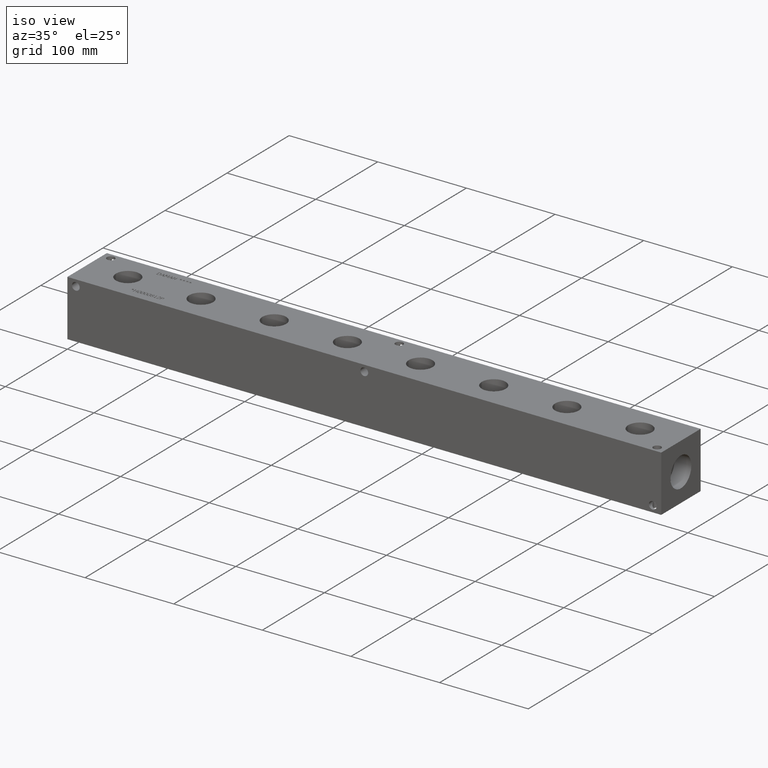
[diagram: clean part render]
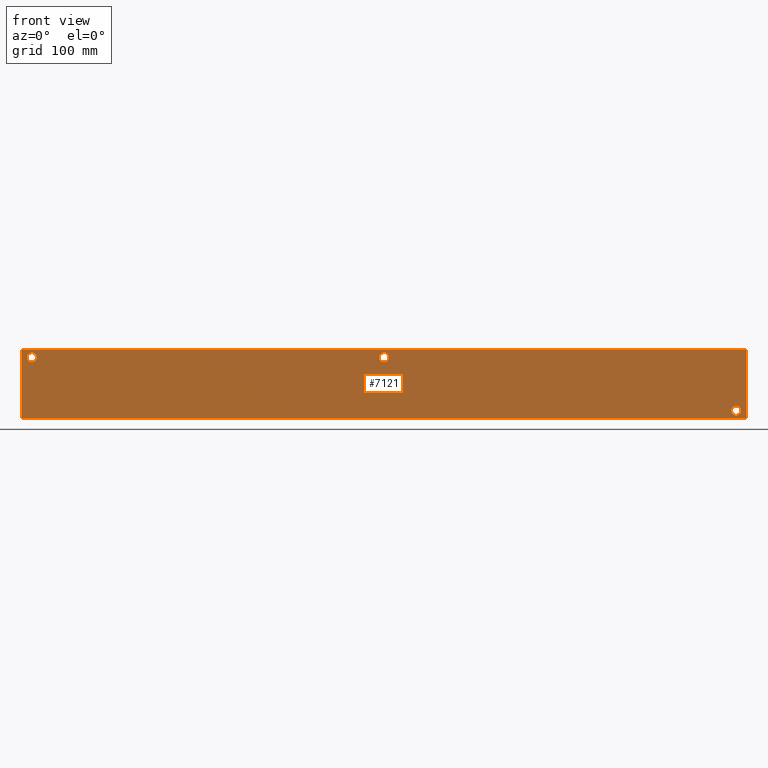
[diagram: tour spotlight — one face highlighted and labeled with its STEP entity id]
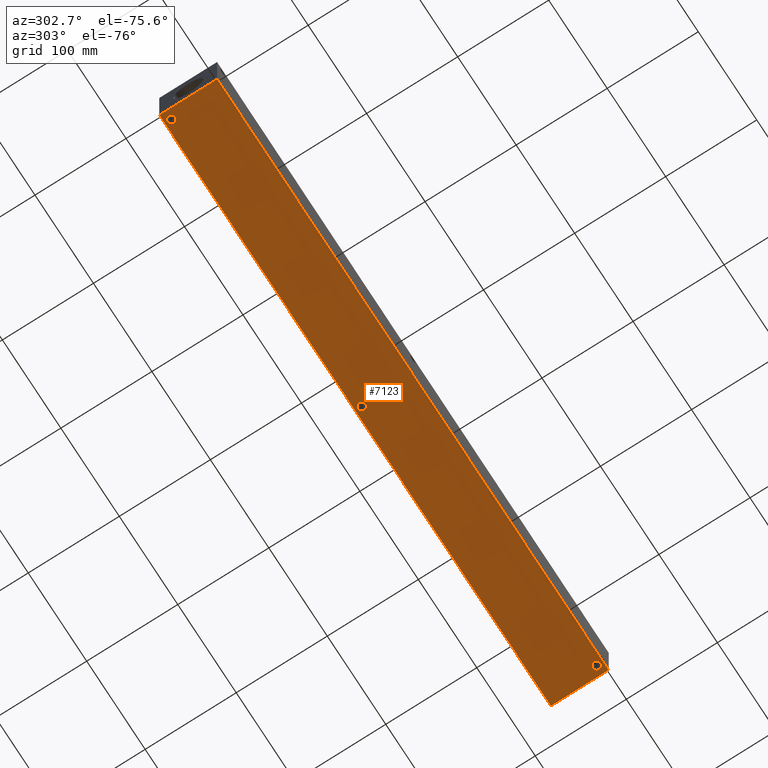
[diagram: tour spotlight — one face highlighted and labeled with its STEP entity id]
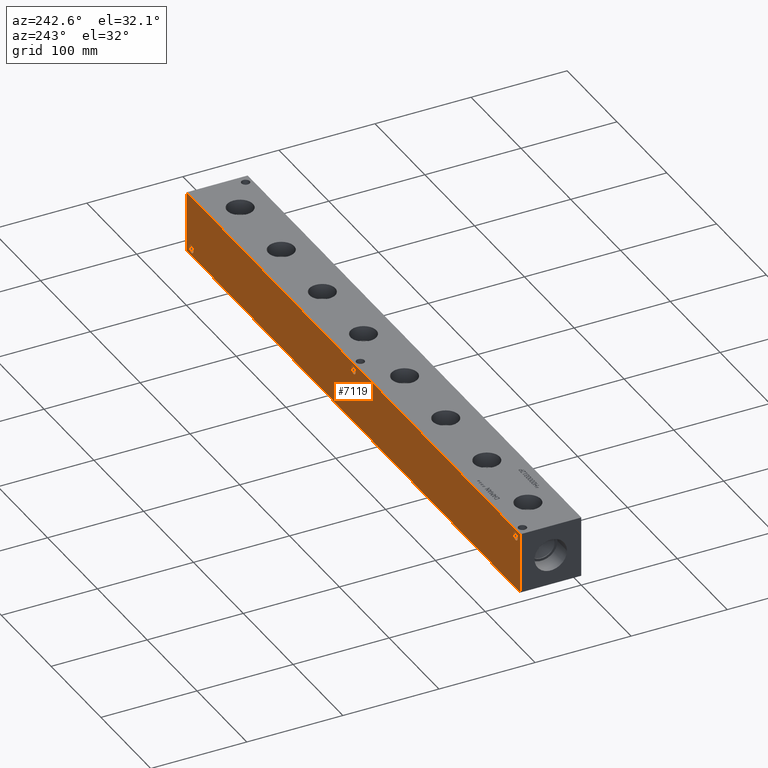
[diagram: tour spotlight — one face highlighted and labeled with its STEP entity id]
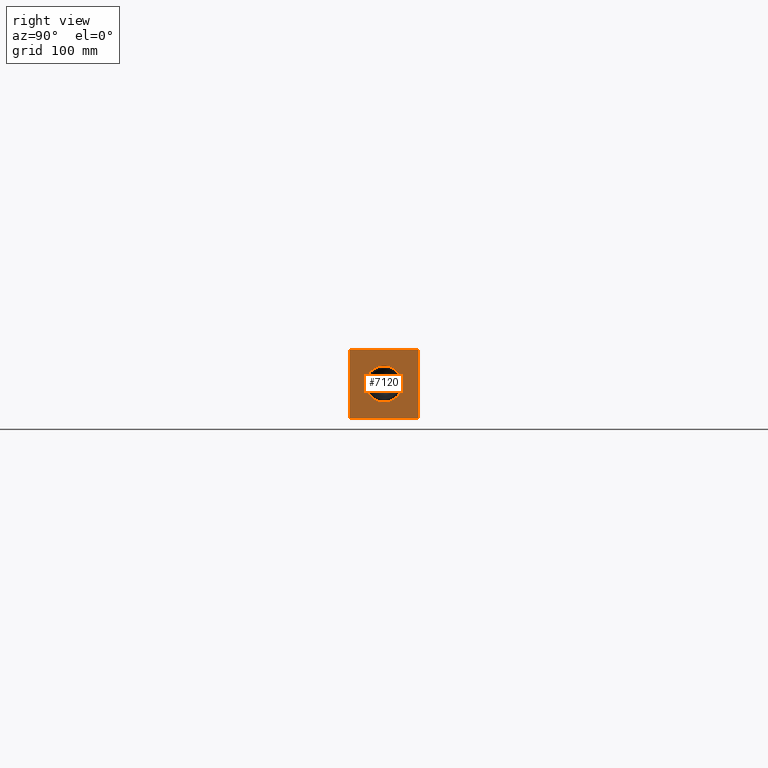
[diagram: tour spotlight — one face highlighted and labeled with its STEP entity id]
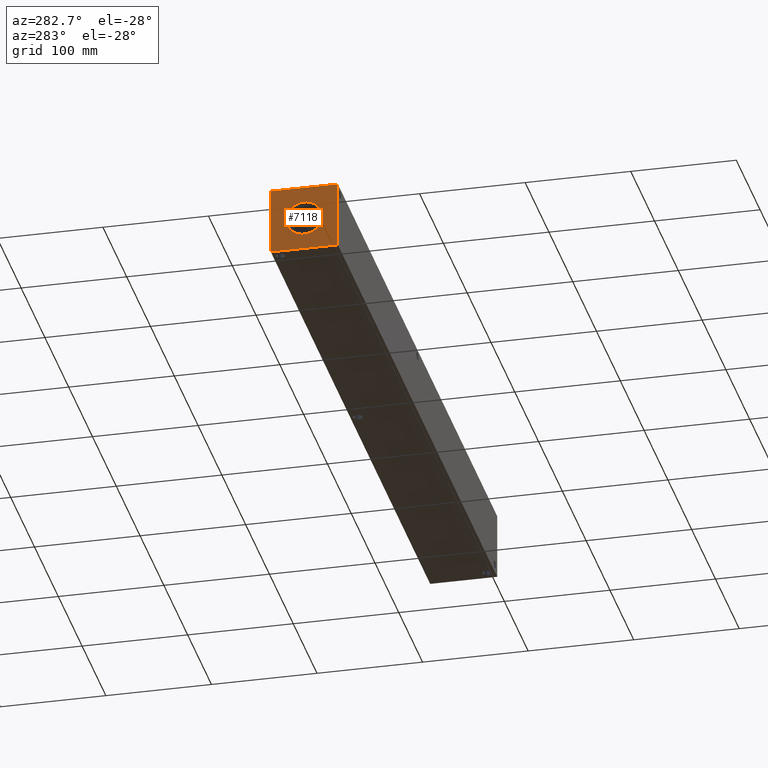
[diagram: tour spotlight — one face highlighted and labeled with its STEP entity id]
A machine part: a face-by-face anatomy tour. The part has 361 B-rep faces; the first image is the clean iso view, then the 5 largest visible faces are spotlighted one at a time (largest first), each with its STEP entity span.

Face 1 — front view, entity #7121. In plain terms, the highlighted planar face has unit normal (0, -1, 0).
Definition (entity closure, byte-faithful):
#90=CIRCLE('',#7369,4.3688);
#91=CIRCLE('',#7370,4.3688);
#93=CIRCLE('',#7379,4.3688);
#94=CIRCLE('',#7380,4.3688);
#96=CIRCLE('',#7388,4.3688);
#97=CIRCLE('',#7389,4.3688);
#211=FACE_BOUND('',#1216,.T.);
#212=FACE_BOUND('',#1217,.T.);
#213=FACE_BOUND('',#1218,.T.);
#438=PLANE('',#7501);
#799=FACE_OUTER_BOUND('',#1215,.T.);
#1215=EDGE_LOOP('',(#6354,#6355,#6356,#6357));
#1216=EDGE_LOOP('',(#6358,#6359));
#1217=EDGE_LOOP('',(#6360,#6361));
#1218=EDGE_LOOP('',(#6362,#6363));
#1479=LINE('',#10927,#2165);
#1903=LINE('',#12143,#2589);
#1908=LINE('',#12152,#2594);
#1909=LINE('',#12154,#2595);
#2165=VECTOR('',#7895,10.);
#2589=VECTOR('',#8907,10.);
#2594=VECTOR('',#8916,10.);
#2595=VECTOR('',#8919,10.);
#3072=VERTEX_POINT('',#10925);
#3073=VERTEX_POINT('',#10926);
#3360=VERTEX_POINT('',#11886);
#3361=VERTEX_POINT('',#11887);
#3365=VERTEX_POINT('',#11904);
#3366=VERTEX_POINT('',#11905);
#3370=VERTEX_POINT('',#11920);
#3371=VERTEX_POINT('',#11921);
#3443=VERTEX_POINT('',#12141);
#3445=VERTEX_POINT('',#12150);
#3875=EDGE_CURVE('',#3072,#3073,#1479,.T.);
#4294=EDGE_CURVE('',#3360,#3361,#90,.T.);
#4295=EDGE_CURVE('',#3361,#3360,#91,.T.);
#4304=EDGE_CURVE('',#3365,#3366,#93,.T.);
#4305=EDGE_CURVE('',#3366,#3365,#94,.T.);
#4313=EDGE_CURVE('',#3370,#3371,#96,.T.);
#4314=EDGE_CURVE('',#3371,#3370,#97,.T.);
#4415=EDGE_CURVE('',#3443,#3072,#1903,.T.);
#4420=EDGE_CURVE('',#3445,#3073,#1908,.T.);
#4421=EDGE_CURVE('',#3443,#3445,#1909,.T.);
#6354=ORIENTED_EDGE('',*,*,#4421,.T.);
#6355=ORIENTED_EDGE('',*,*,#4420,.T.);
#6356=ORIENTED_EDGE('',*,*,#3875,.F.);
#6357=ORIENTED_EDGE('',*,*,#4415,.F.);
#6358=ORIENTED_EDGE('',*,*,#4294,.T.);
#6359=ORIENTED_EDGE('',*,*,#4295,.T.);
#6360=ORIENTED_EDGE('',*,*,#4304,.T.);
#6361=ORIENTED_EDGE('',*,*,#4305,.T.);
#6362=ORIENTED_EDGE('',*,*,#4313,.T.);
#6363=ORIENTED_EDGE('',*,*,#4314,.T.);
#7121=ADVANCED_FACE('',(#799,#211,#212,#213),#438,.T.);
#7369=AXIS2_PLACEMENT_3D('',#11888,#8604,#8605);
#7370=AXIS2_PLACEMENT_3D('',#11889,#8606,#8607);
#7379=AXIS2_PLACEMENT_3D('',#11906,#8627,#8628);
#7380=AXIS2_PLACEMENT_3D('',#11907,#8629,#8630);
#7388=AXIS2_PLACEMENT_3D('',#11922,#8647,#8648);
#7389=AXIS2_PLACEMENT_3D('',#11923,#8649,#8650);
#7501=AXIS2_PLACEMENT_3D('',#12153,#8917,#8918);
#7895=DIRECTION('',(1.,0.,0.));
#8604=DIRECTION('center_axis',(0.,1.,0.));
#8605=DIRECTION('ref_axis',(1.,0.,0.));
#8606=DIRECTION('center_axis',(0.,1.,0.));
#8607=DIRECTION('ref_axis',(1.,0.,0.));
#8627=DIRECTION('center_axis',(0.,1.,0.));
#8628=DIRECTION('ref_axis',(1.,0.,0.));
#8629=DIRECTION('center_axis',(0.,1.,0.));
#8630=DIRECTION('ref_axis',(1.,0.,0.));
#8647=DIRECTION('center_axis',(0.,1.,0.));
#8648=DIRECTION('ref_axis',(1.,0.,0.));
#8649=DIRECTION('center_axis',(0.,1.,0.));
#8650=DIRECTION('ref_axis',(1.,0.,0.));
#8907=DIRECTION('',(0.,0.,1.));
#8916=DIRECTION('',(0.,0.,1.));
#8917=DIRECTION('center_axis',(0.,-1.,0.));
#8918=DIRECTION('ref_axis',(1.,0.,0.));
#8919=DIRECTION('',(1.,0.,0.));
#10925=CARTESIAN_POINT('',(0.,0.,63.5));
#10926=CARTESIAN_POINT('',(669.925,0.,63.5));
#10927=CARTESIAN_POINT('',(0.,0.,63.5));
#11886=CARTESIAN_POINT('',(664.7688,0.,7.1374));
#11887=CARTESIAN_POINT('',(656.0312,0.,7.1374));
#11888=CARTESIAN_POINT('Origin',(660.4,0.,7.1374));
#11889=CARTESIAN_POINT('Origin',(660.4,0.,7.1374));
#11904=CARTESIAN_POINT('',(13.8938,0.,56.3626));
#11905=CARTESIAN_POINT('',(5.1562,0.,56.3626));
#11906=CARTESIAN_POINT('Origin',(9.525,0.,56.3626));
#11907=CARTESIAN_POINT('Origin',(9.525,0.,56.3626));
#11920=CARTESIAN_POINT('',(339.344,0.,56.3626));
#11921=CARTESIAN_POINT('',(330.6064,0.,56.3626));
#11922=CARTESIAN_POINT('Origin',(334.9752,0.,56.3626));
#11923=CARTESIAN_POINT('Origin',(334.9752,0.,56.3626));
#12141=CARTESIAN_POINT('',(0.,0.,0.));
#12143=CARTESIAN_POINT('',(0.,0.,0.));
#12150=CARTESIAN_POINT('',(669.925,0.,0.));
#12152=CARTESIAN_POINT('',(669.925,0.,0.));
#12153=CARTESIAN_POINT('Origin',(0.,0.,0.));
#12154=CARTESIAN_POINT('',(0.,0.,0.));

Face 2 — auxiliary view, entity #7123. In plain terms, the highlighted planar face has unit normal (0, 0, 1).
Definition (entity closure, byte-faithful):
#99=CIRCLE('',#7399,4.3688);
#100=CIRCLE('',#7401,4.3688);
#101=CIRCLE('',#7403,4.3688);
#214=FACE_BOUND('',#1221,.T.);
#215=FACE_BOUND('',#1222,.T.);
#216=FACE_BOUND('',#1223,.T.);
#440=PLANE('',#7503);
#801=FACE_OUTER_BOUND('',#1220,.T.);
#1220=EDGE_LOOP('',(#6367,#6368,#6369,#6370));
#1221=EDGE_LOOP('',(#6371));
#1222=EDGE_LOOP('',(#6372));
#1223=EDGE_LOOP('',(#6373));
#1902=LINE('',#12142,#2588);
#1905=LINE('',#12147,#2591);
#1907=LINE('',#12151,#2593);
#1909=LINE('',#12154,#2595);
#2588=VECTOR('',#8906,10.);
#2591=VECTOR('',#8911,10.);
#2593=VECTOR('',#8915,10.);
#2595=VECTOR('',#8919,10.);
#3375=VERTEX_POINT('',#11940);
#3376=VERTEX_POINT('',#11944);
#3377=VERTEX_POINT('',#11948);
#3442=VERTEX_POINT('',#12140);
#3443=VERTEX_POINT('',#12141);
#3444=VERTEX_POINT('',#12146);
#3445=VERTEX_POINT('',#12150);
#4325=EDGE_CURVE('',#3375,#3375,#99,.T.);
#4327=EDGE_CURVE('',#3376,#3376,#100,.T.);
#4329=EDGE_CURVE('',#3377,#3377,#101,.T.);
#4414=EDGE_CURVE('',#3442,#3443,#1902,.T.);
#4417=EDGE_CURVE('',#3444,#3442,#1905,.T.);
#4419=EDGE_CURVE('',#3445,#3444,#1907,.T.);
#4421=EDGE_CURVE('',#3443,#3445,#1909,.T.);
#6367=ORIENTED_EDGE('',*,*,#4421,.F.);
#6368=ORIENTED_EDGE('',*,*,#4414,.F.);
#6369=ORIENTED_EDGE('',*,*,#4417,.F.);
#6370=ORIENTED_EDGE('',*,*,#4419,.F.);
#6371=ORIENTED_EDGE('',*,*,#4325,.T.);
#6372=ORIENTED_EDGE('',*,*,#4327,.T.);
#6373=ORIENTED_EDGE('',*,*,#4329,.T.);
#7123=ADVANCED_FACE('',(#801,#214,#215,#216),#440,.F.);
#7399=AXIS2_PLACEMENT_3D('',#11942,#8674,#8675);
#7401=AXIS2_PLACEMENT_3D('',#11946,#8679,#8680);
#7403=AXIS2_PLACEMENT_3D('',#11950,#8684,#8685);
#7503=AXIS2_PLACEMENT_3D('',#12156,#8922,#8923);
#8674=DIRECTION('center_axis',(0.,0.,1.));
#8675=DIRECTION('ref_axis',(1.,0.,0.));
#8679=DIRECTION('center_axis',(0.,0.,1.));
#8680=DIRECTION('ref_axis',(1.,0.,0.));
#8684=DIRECTION('center_axis',(0.,0.,1.));
#8685=DIRECTION('ref_axis',(1.,0.,0.));
#8906=DIRECTION('',(0.,-1.,0.));
#8911=DIRECTION('',(-1.,0.,0.));
#8915=DIRECTION('',(0.,1.,0.));
#8919=DIRECTION('',(1.,0.,0.));
#8922=DIRECTION('center_axis',(0.,0.,1.));
#8923=DIRECTION('ref_axis',(1.,0.,0.));
#11940=CARTESIAN_POINT('',(656.0312,7.1374,0.));
#11942=CARTESIAN_POINT('Origin',(660.4,7.1374,0.));
#11944=CARTESIAN_POINT('',(5.1562,56.3626,0.));
#11946=CARTESIAN_POINT('Origin',(9.525,56.3626,0.));
#11948=CARTESIAN_POINT('',(330.6064,56.3626,0.));
#11950=CARTESIAN_POINT('Origin',(334.9752,56.3626,0.));
#12140=CARTESIAN_POINT('',(0.,63.5,0.));
#12141=CARTESIAN_POINT('',(0.,0.,0.));
#12142=CARTESIAN_POINT('',(0.,63.5,0.));
#12146=CARTESIAN_POINT('',(669.925,63.5,0.));
#12147=CARTESIAN_POINT('',(669.925,63.5,0.));
#12150=CARTESIAN_POINT('',(669.925,0.,0.));
#12151=CARTESIAN_POINT('',(669.925,0.,0.));
#12154=CARTESIAN_POINT('',(0.,0.,0.));
#12156=CARTESIAN_POINT('Origin',(334.9625,31.75,0.));

Face 3 — auxiliary view, entity #7119. In plain terms, the highlighted planar face has unit normal (0, 1, 0).
Definition (entity closure, byte-faithful):
#92=CIRCLE('',#7376,4.3688);
#95=CIRCLE('',#7386,4.3688);
#98=CIRCLE('',#7395,4.3688);
#207=FACE_BOUND('',#1210,.T.);
#208=FACE_BOUND('',#1211,.T.);
#209=FACE_BOUND('',#1212,.T.);
#436=PLANE('',#7499);
#797=FACE_OUTER_BOUND('',#1209,.T.);
#1209=EDGE_LOOP('',(#6341,#6342,#6343,#6344));
#1210=EDGE_LOOP('',(#6345));
#1211=EDGE_LOOP('',(#6346));
#1212=EDGE_LOOP('',(#6347));
#1481=LINE('',#10931,#2167);
#1904=LINE('',#12144,#2590);
#1905=LINE('',#12147,#2591);
#1906=LINE('',#12148,#2592);
#2167=VECTOR('',#7897,10.);
#2590=VECTOR('',#8908,10.);
#2591=VECTOR('',#8911,10.);
#2592=VECTOR('',#8912,10.);
#3074=VERTEX_POINT('',#10928);
#3075=VERTEX_POINT('',#10930);
#3364=VERTEX_POINT('',#11898);
#3369=VERTEX_POINT('',#11916);
#3374=VERTEX_POINT('',#11932);
#3442=VERTEX_POINT('',#12140);
#3444=VERTEX_POINT('',#12146);
#3877=EDGE_CURVE('',#3074,#3075,#1481,.T.);
#4302=EDGE_CURVE('',#3364,#3364,#92,.T.);
#4312=EDGE_CURVE('',#3369,#3369,#95,.T.);
#4321=EDGE_CURVE('',#3374,#3374,#98,.T.);
#4416=EDGE_CURVE('',#3442,#3075,#1904,.T.);
#4417=EDGE_CURVE('',#3444,#3442,#1905,.T.);
#4418=EDGE_CURVE('',#3444,#3074,#1906,.T.);
#6341=ORIENTED_EDGE('',*,*,#4417,.T.);
#6342=ORIENTED_EDGE('',*,*,#4416,.T.);
#6343=ORIENTED_EDGE('',*,*,#3877,.F.);
#6344=ORIENTED_EDGE('',*,*,#4418,.F.);
#6345=ORIENTED_EDGE('',*,*,#4302,.T.);
#6346=ORIENTED_EDGE('',*,*,#4312,.T.);
#6347=ORIENTED_EDGE('',*,*,#4321,.T.);
#7119=ADVANCED_FACE('',(#797,#207,#208,#209),#436,.T.);
#7376=AXIS2_PLACEMENT_3D('',#11900,#8620,#8621);
#7386=AXIS2_PLACEMENT_3D('',#11918,#8643,#8644);
#7395=AXIS2_PLACEMENT_3D('',#11934,#8663,#8664);
#7499=AXIS2_PLACEMENT_3D('',#12145,#8909,#8910);
#7897=DIRECTION('',(-1.,0.,0.));
#8620=DIRECTION('center_axis',(0.,-1.,0.));
#8621=DIRECTION('ref_axis',(1.,0.,0.));
#8643=DIRECTION('center_axis',(0.,-1.,0.));
#8644=DIRECTION('ref_axis',(1.,0.,0.));
#8663=DIRECTION('center_axis',(0.,-1.,0.));
#8664=DIRECTION('ref_axis',(1.,0.,0.));
#8908=DIRECTION('',(0.,0.,1.));
#8909=DIRECTION('center_axis',(0.,1.,0.));
#8910=DIRECTION('ref_axis',(-1.,0.,0.));
#8911=DIRECTION('',(-1.,0.,0.));
#8912=DIRECTION('',(0.,0.,1.));
#10928=CARTESIAN_POINT('',(669.925,63.5,63.5));
#10930=CARTESIAN_POINT('',(0.,63.5,63.5));
#10931=CARTESIAN_POINT('',(669.925,63.5,63.5));
#11898=CARTESIAN_POINT('',(656.0312,63.5,7.1374));
#11900=CARTESIAN_POINT('Origin',(660.4,63.5,7.1374));
#11916=CARTESIAN_POINT('',(5.1562,63.5,56.3626));
#11918=CARTESIAN_POINT('Origin',(9.525,63.5,56.3626));
#11932=CARTESIAN_POINT('',(330.6064,63.5,56.3626));
#11934=CARTESIAN_POINT('Origin',(334.9752,63.5,56.3626));
#12140=CARTESIAN_POINT('',(0.,63.5,0.));
#12144=CARTESIAN_POINT('',(0.,63.5,0.));
#12145=CARTESIAN_POINT('Origin',(669.925,63.5,0.));
#12146=CARTESIAN_POINT('',(669.925,63.5,0.));
#12147=CARTESIAN_POINT('',(669.925,63.5,0.));
#12148=CARTESIAN_POINT('',(669.925,63.5,0.));

Face 4 — right view, entity #7120. In plain terms, the highlighted planar face has unit normal (1, 0, 0).
Definition (entity closure, byte-faithful):
#147=CIRCLE('',#7484,16.8529);
#148=CIRCLE('',#7485,16.8529);
#210=FACE_BOUND('',#1214,.T.);
#437=PLANE('',#7500);
#798=FACE_OUTER_BOUND('',#1213,.T.);
#1213=EDGE_LOOP('',(#6348,#6349,#6350,#6351));
#1214=EDGE_LOOP('',(#6352,#6353));
#1480=LINE('',#10929,#2166);
#1906=LINE('',#12148,#2592);
#1907=LINE('',#12151,#2593);
#1908=LINE('',#12152,#2594);
#2166=VECTOR('',#7896,10.);
#2592=VECTOR('',#8912,10.);
#2593=VECTOR('',#8915,10.);
#2594=VECTOR('',#8916,10.);
#3073=VERTEX_POINT('',#10926);
#3074=VERTEX_POINT('',#10928);
#3432=VERTEX_POINT('',#12110);
#3433=VERTEX_POINT('',#12111);
#3444=VERTEX_POINT('',#12146);
#3445=VERTEX_POINT('',#12150);
#3876=EDGE_CURVE('',#3073,#3074,#1480,.T.);
#4400=EDGE_CURVE('',#3432,#3433,#147,.T.);
#4401=EDGE_CURVE('',#3433,#3432,#148,.T.);
#4418=EDGE_CURVE('',#3444,#3074,#1906,.T.);
#4419=EDGE_CURVE('',#3445,#3444,#1907,.T.);
#4420=EDGE_CURVE('',#3445,#3073,#1908,.T.);
#6348=ORIENTED_EDGE('',*,*,#4419,.T.);
#6349=ORIENTED_EDGE('',*,*,#4418,.T.);
#6350=ORIENTED_EDGE('',*,*,#3876,.F.);
#6351=ORIENTED_EDGE('',*,*,#4420,.F.);
#6352=ORIENTED_EDGE('',*,*,#4400,.T.);
#6353=ORIENTED_EDGE('',*,*,#4401,.T.);
#7120=ADVANCED_FACE('',(#798,#210),#437,.T.);
#7484=AXIS2_PLACEMENT_3D('',#12112,#8871,#8872);
#7485=AXIS2_PLACEMENT_3D('',#12113,#8873,#8874);
#7500=AXIS2_PLACEMENT_3D('',#12149,#8913,#8914);
#7896=DIRECTION('',(0.,1.,0.));
#8871=DIRECTION('center_axis',(-1.,0.,0.));
#8872=DIRECTION('ref_axis',(0.,1.,0.));
#8873=DIRECTION('center_axis',(-1.,0.,0.));
#8874=DIRECTION('ref_axis',(0.,1.,0.));
#8912=DIRECTION('',(0.,0.,1.));
#8913=DIRECTION('center_axis',(1.,0.,0.));
#8914=DIRECTION('ref_axis',(0.,1.,0.));
#8915=DIRECTION('',(0.,1.,0.));
#8916=DIRECTION('',(0.,0.,1.));
#10926=CARTESIAN_POINT('',(669.925,0.,63.5));
#10928=CARTESIAN_POINT('',(669.925,63.5,63.5));
#10929=CARTESIAN_POINT('',(669.925,0.,63.5));
#12110=CARTESIAN_POINT('',(669.925,48.6029,31.75));
#12111=CARTESIAN_POINT('',(669.925,14.8971,31.75));
#12112=CARTESIAN_POINT('Origin',(669.925,31.75,31.75));
#12113=CARTESIAN_POINT('Origin',(669.925,31.75,31.75));
#12146=CARTESIAN_POINT('',(669.925,63.5,0.));
#12148=CARTESIAN_POINT('',(669.925,63.5,0.));
#12149=CARTESIAN_POINT('Origin',(669.925,0.,0.));
#12150=CARTESIAN_POINT('',(669.925,0.,0.));
#12151=CARTESIAN_POINT('',(669.925,0.,0.));
#12152=CARTESIAN_POINT('',(669.925,0.,0.));

Face 5 — auxiliary view, entity #7118. In plain terms, the highlighted planar face has unit normal (-1, 0, 0).
Definition (entity closure, byte-faithful):
#154=CIRCLE('',#7495,16.8529);
#155=CIRCLE('',#7496,16.8529);
#206=FACE_BOUND('',#1208,.T.);
#435=PLANE('',#7498);
#796=FACE_OUTER_BOUND('',#1207,.T.);
#1207=EDGE_LOOP('',(#6335,#6336,#6337,#6338));
#1208=EDGE_LOOP('',(#6339,#6340));
#1482=LINE('',#10932,#2168);
#1902=LINE('',#12142,#2588);
#1903=LINE('',#12143,#2589);
#1904=LINE('',#12144,#2590);
#2168=VECTOR('',#7898,10.);
#2588=VECTOR('',#8906,10.);
#2589=VECTOR('',#8907,10.);
#2590=VECTOR('',#8908,10.);
#3072=VERTEX_POINT('',#10925);
#3075=VERTEX_POINT('',#10930);
#3440=VERTEX_POINT('',#12132);
#3441=VERTEX_POINT('',#12133);
#3442=VERTEX_POINT('',#12140);
#3443=VERTEX_POINT('',#12141);
#3878=EDGE_CURVE('',#3075,#3072,#1482,.T.);
#4410=EDGE_CURVE('',#3440,#3441,#154,.T.);
#4411=EDGE_CURVE('',#3441,#3440,#155,.T.);
#4414=EDGE_CURVE('',#3442,#3443,#1902,.T.);
#4415=EDGE_CURVE('',#3443,#3072,#1903,.T.);
#4416=EDGE_CURVE('',#3442,#3075,#1904,.T.);
#6335=ORIENTED_EDGE('',*,*,#4414,.T.);
#6336=ORIENTED_EDGE('',*,*,#4415,.T.);
#6337=ORIENTED_EDGE('',*,*,#3878,.F.);
#6338=ORIENTED_EDGE('',*,*,#4416,.F.);
#6339=ORIENTED_EDGE('',*,*,#4410,.T.);
#6340=ORIENTED_EDGE('',*,*,#4411,.T.);
#7118=ADVANCED_FACE('',(#796,#206),#435,.T.);
#7495=AXIS2_PLACEMENT_3D('',#12134,#8896,#8897);
#7496=AXIS2_PLACEMENT_3D('',#12135,#8898,#8899);
#7498=AXIS2_PLACEMENT_3D('',#12139,#8904,#8905);
#7898=DIRECTION('',(0.,-1.,0.));
#8896=DIRECTION('center_axis',(1.,0.,0.));
#8897=DIRECTION('ref_axis',(0.,1.,0.));
#8898=DIRECTION('center_axis',(1.,0.,0.));
#8899=DIRECTION('ref_axis',(0.,1.,0.));
#8904=DIRECTION('center_axis',(-1.,0.,0.));
#8905=DIRECTION('ref_axis',(0.,-1.,0.));
#8906=DIRECTION('',(0.,-1.,0.));
#8907=DIRECTION('',(0.,0.,1.));
#8908=DIRECTION('',(0.,0.,1.));
#10925=CARTESIAN_POINT('',(0.,0.,63.5));
#10930=CARTESIAN_POINT('',(0.,63.5,63.5));
#10932=CARTESIAN_POINT('',(0.,63.5,63.5));
#12132=CARTESIAN_POINT('',(0.,48.6029,31.75));
#12133=CARTESIAN_POINT('',(0.,14.8971,31.75));
#12134=CARTESIAN_POINT('Origin',(0.,31.75,31.75));
#12135=CARTESIAN_POINT('Origin',(0.,31.75,31.75));
#12139=CARTESIAN_POINT('Origin',(0.,63.5,0.));
#12140=CARTESIAN_POINT('',(0.,63.5,0.));
#12141=CARTESIAN_POINT('',(0.,0.,0.));
#12142=CARTESIAN_POINT('',(0.,63.5,0.));
#12143=CARTESIAN_POINT('',(0.,0.,0.));
#12144=CARTESIAN_POINT('',(0.,63.5,0.));